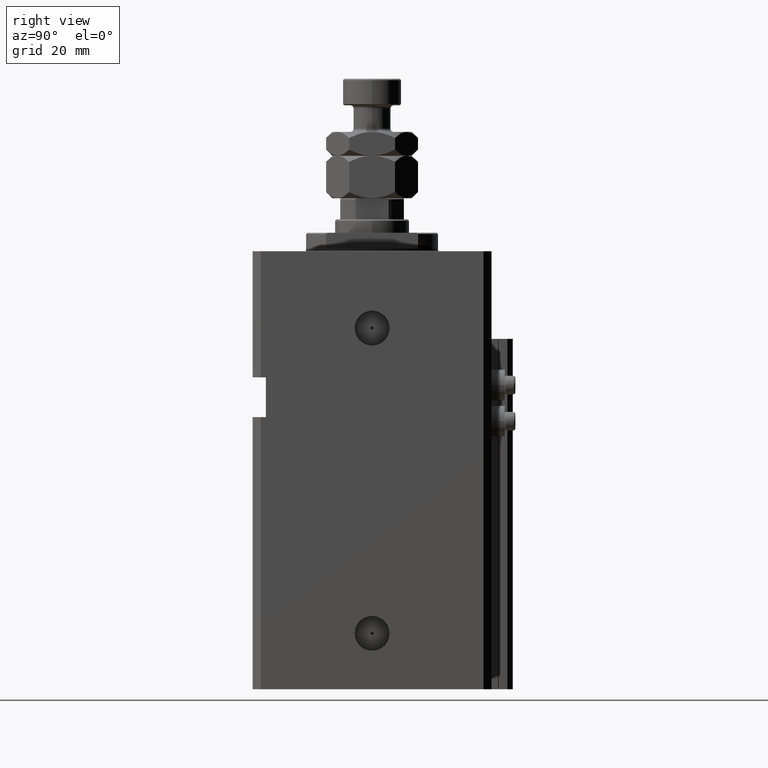
[diagram: clean part render]
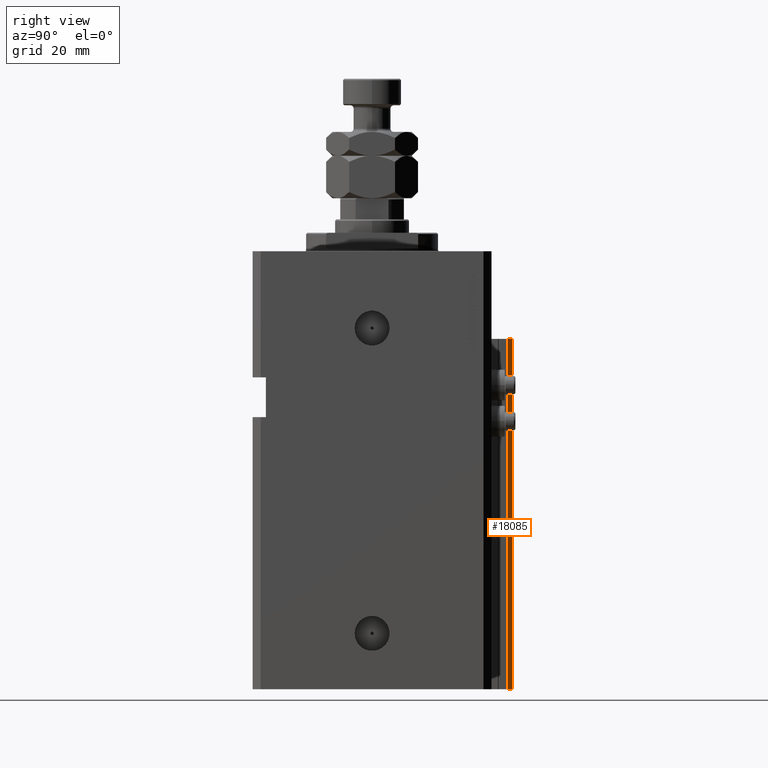
[diagram: same view with one face highlighted and labeled with its STEP entity id]
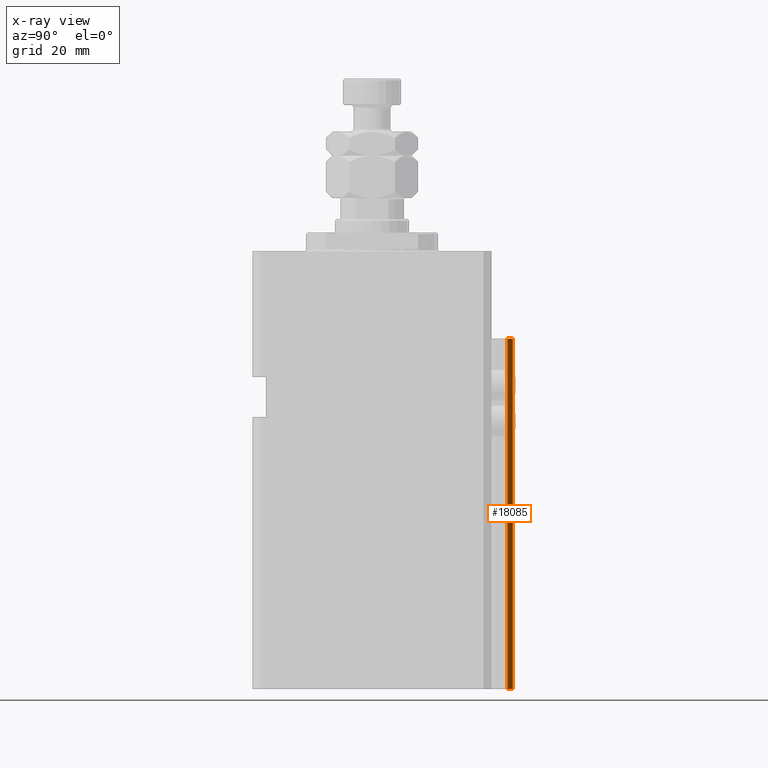
[diagram: x-ray of the same camera — body ghosted, the highlighted face saturated]
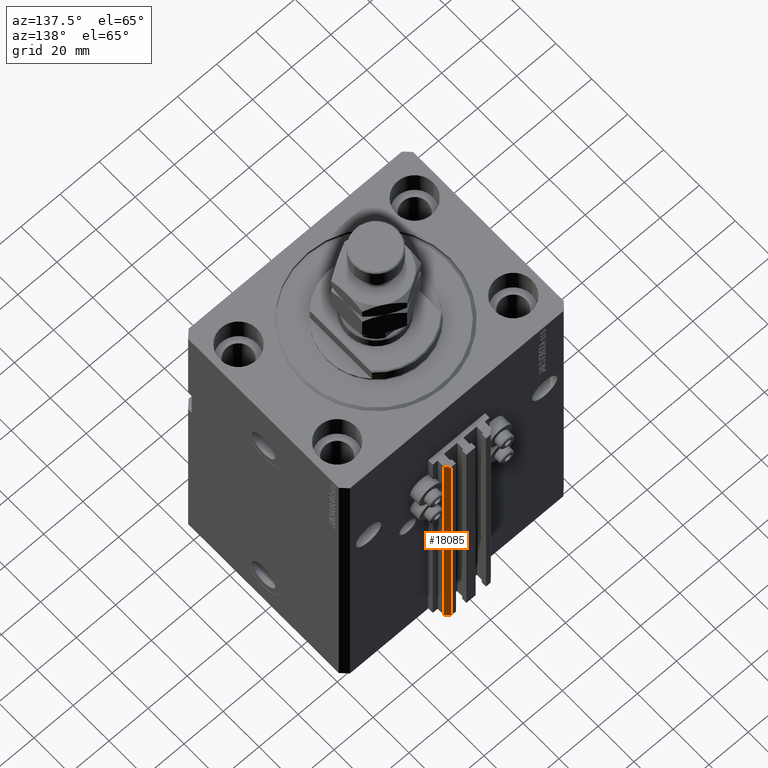
[diagram: same view with one face highlighted and labeled with its STEP entity id]
A machine part, right view. The second image highlights one B-rep face of the part: STEP entity #18085.
The next image is the same camera in x-ray: the body ghosted, the highlighted face saturated — about 0% of this face is hidden behind the body in this view.
A second angle (auxiliary view) of the same face is appended — the face is thin or edge-on in the first view.
In plain terms, the highlighted planar face has unit normal (0.7071, 0.7071, 0).
Its self-contained STEP definition (entity closure, byte-faithful):
#62 = CARTESIAN_POINT ( 'NONE',  ( 9.999999999999998224, 53.00000000000000711, -165.0000000000000000 ) ) ;
#195 = DIRECTION ( 'NONE',  ( 0.7071067811865475727, 0.7071067811865475727, -0.000000000000000000 ) ) ;
#422 = ORIENTED_EDGE ( 'NONE', *, *, #49661, .F. ) ;
#601 = EDGE_LOOP ( 'NONE', ( #24732, #422, #20005, #25123 ) ) ;
#710 = PLANE ( 'NONE',  #41363 ) ;
#3738 = DIRECTION ( 'NONE',  ( -0.7071067811865474617, 0.7071067811865474617, 0.000000000000000000 ) ) ;
#3771 = DIRECTION ( 'NONE',  ( 0.000000000000000000, 0.000000000000000000, 1.000000000000000000 ) ) ;
#6240 = VERTEX_POINT ( 'NONE', #7536 ) ;
#7207 = CARTESIAN_POINT ( 'NONE',  ( 12.00000000000000000, 51.00000000000000711, -165.0000000000000000 ) ) ;
#7536 = CARTESIAN_POINT ( 'NONE',  ( 12.00000000000000000, 51.00000000000000711, -33.00000000000000000 ) ) ;
#8835 = VERTEX_POINT ( 'NONE', #44174 ) ;
#11929 = EDGE_CURVE ( 'NONE', #43946, #42633, #51127, .T. ) ;
#13399 = CARTESIAN_POINT ( 'NONE',  ( 9.999999999999998224, 53.00000000000000711, -33.00000000000000000 ) ) ;
#18085 = ADVANCED_FACE ( 'NONE', ( #43643 ), #710, .T. ) ;
#20005 = ORIENTED_EDGE ( 'NONE', *, *, #26526, .T. ) ;
#24142 = CARTESIAN_POINT ( 'NONE',  ( 12.00000000000000000, 51.00000000000000711, -165.0000000000000000 ) ) ;
#24732 = ORIENTED_EDGE ( 'NONE', *, *, #49478, .F. ) ;
#25123 = ORIENTED_EDGE ( 'NONE', *, *, #11929, .T. ) ;
#26526 = EDGE_CURVE ( 'NONE', #8835, #43946, #38711, .T. ) ;
#26950 = VECTOR ( 'NONE', #34401, 1000.000000000000000 ) ;
#27266 = DIRECTION ( 'NONE',  ( -0.7071067811865474617, 0.7071067811865474617, 0.000000000000000000 ) ) ;
#28050 = DIRECTION ( 'NONE',  ( -0.7071067811865474617, 0.7071067811865474617, 0.000000000000000000 ) ) ;
#30301 = VECTOR ( 'NONE', #3738, 1000.000000000000114 ) ;
#32997 = VECTOR ( 'NONE', #3771, 1000.000000000000000 ) ;
#33427 = VECTOR ( 'NONE', #27266, 1000.000000000000114 ) ;
#34401 = DIRECTION ( 'NONE',  ( 0.000000000000000000, 0.000000000000000000, 1.000000000000000000 ) ) ;
#38306 = CARTESIAN_POINT ( 'NONE',  ( 12.00000000000000000, 51.00000000000000711, -165.0000000000000000 ) ) ;
#38711 = LINE ( 'NONE', #7207, #33427 ) ;
#41363 = AXIS2_PLACEMENT_3D ( 'NONE', #24142, #195, #28050 ) ;
#42328 = CARTESIAN_POINT ( 'NONE',  ( 12.00000000000000000, 51.00000000000000711, -33.00000000000000000 ) ) ;
#42633 = VERTEX_POINT ( 'NONE', #13399 ) ;
#42808 = CARTESIAN_POINT ( 'NONE',  ( 9.999999999999998224, 53.00000000000000711, -165.0000000000000000 ) ) ;
#43295 = LINE ( 'NONE', #42328, #30301 ) ;
#43643 = FACE_OUTER_BOUND ( 'NONE', #601, .T. ) ;
#43946 = VERTEX_POINT ( 'NONE', #62 ) ;
#44174 = CARTESIAN_POINT ( 'NONE',  ( 12.00000000000000000, 51.00000000000000711, -165.0000000000000000 ) ) ;
#49478 = EDGE_CURVE ( 'NONE', #6240, #42633, #43295, .T. ) ;
#49661 = EDGE_CURVE ( 'NONE', #8835, #6240, #49740, .T. ) ;
#49740 = LINE ( 'NONE', #38306, #26950 ) ;
#51127 = LINE ( 'NONE', #42808, #32997 ) ;